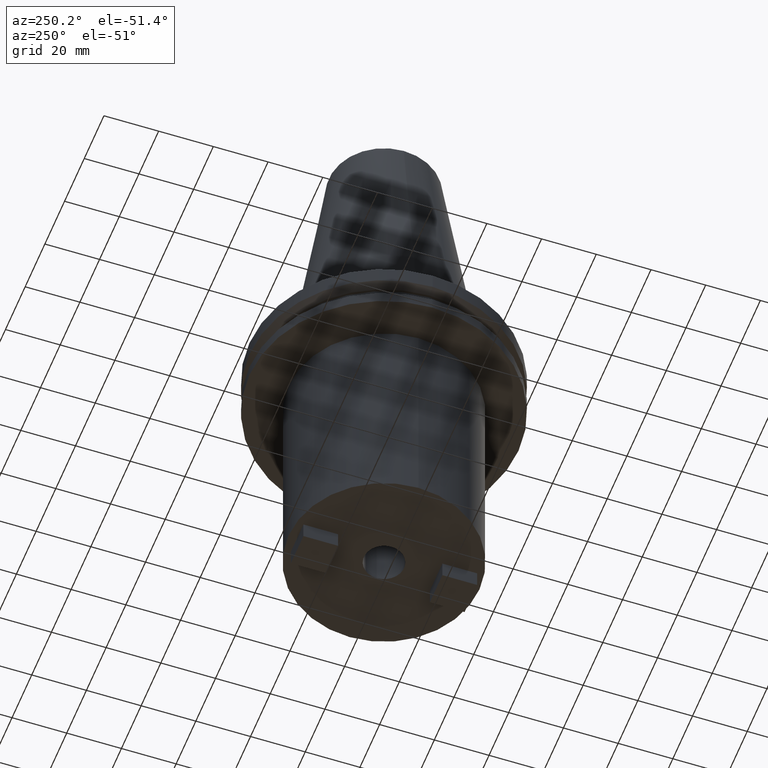
[diagram: clean part render]
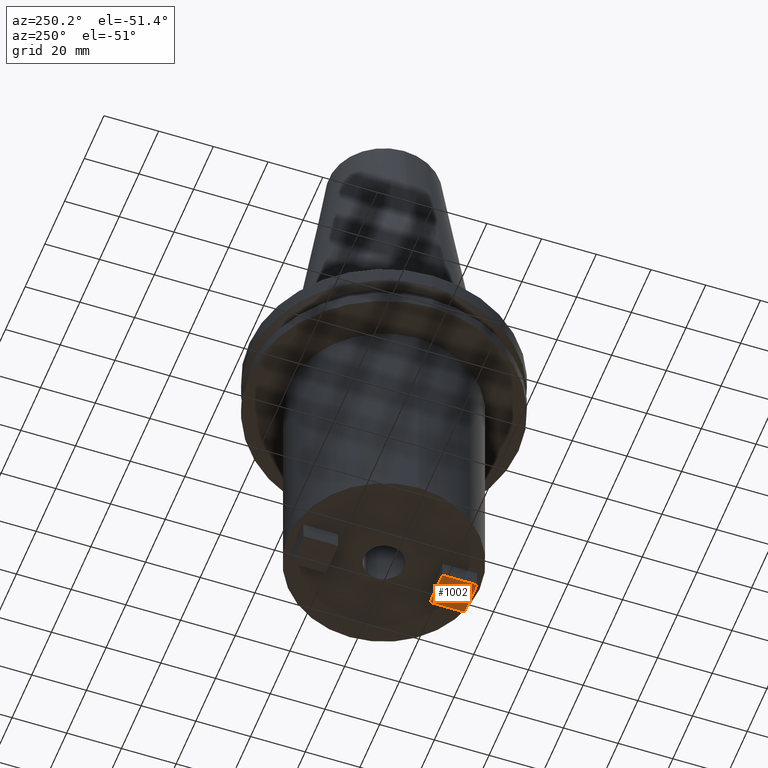
[diagram: same view with one face highlighted and labeled with its STEP entity id]
A machine part, auxiliary view. The second image highlights one B-rep face of the part: STEP entity #1002.
In plain terms, the highlighted planar face has unit normal (0, -0, 1).
Its self-contained STEP definition (entity closure, byte-faithful):
#35 = VERTEX_POINT ( 'NONE', #440 ) ;
#58 = CARTESIAN_POINT ( 'NONE',  ( 6.349999999999984546, -19.05000000000000782, -108.0000000000000000 ) ) ;
#82 = VECTOR ( 'NONE', #253, 1000.000000000000000 ) ;
#115 = DIRECTION ( 'NONE',  ( -1.000000000000000000, 0.000000000000000000, 0.000000000000000000 ) ) ;
#195 = LINE ( 'NONE', #284, #564 ) ;
#253 = DIRECTION ( 'NONE',  ( 1.000000000000000000, -1.092739197465706471E-15, -0.000000000000000000 ) ) ;
#256 = LINE ( 'NONE', #869, #82 ) ;
#257 = DIRECTION ( 'NONE',  ( -0.000000000000000000, -1.000000000000000000, -0.000000000000000000 ) ) ;
#284 = CARTESIAN_POINT ( 'NONE',  ( 6.349999999999984546, -31.75000000000000711, -108.0000000000000000 ) ) ;
#287 = PLANE ( 'NONE',  #804 ) ;
#325 = EDGE_LOOP ( 'NONE', ( #336, #612, #529, #560 ) ) ;
#336 = ORIENTED_EDGE ( 'NONE', *, *, #568, .T. ) ;
#404 = EDGE_CURVE ( 'NONE', #624, #1001, #865, .T. ) ;
#433 = LINE ( 'NONE', #450, #659 ) ;
#440 = CARTESIAN_POINT ( 'NONE',  ( -6.350000000000003197, -19.04999999999999361, -108.0000000000000000 ) ) ;
#450 = CARTESIAN_POINT ( 'NONE',  ( -6.350000000000004974, -31.75000000000000711, -108.0000000000000000 ) ) ;
#459 = DIRECTION ( 'NONE',  ( 0.000000000000000000, -0.000000000000000000, 1.000000000000000000 ) ) ;
#495 = CARTESIAN_POINT ( 'NONE',  ( 6.349999999999984546, -31.75000000000000711, -108.0000000000000000 ) ) ;
#529 = ORIENTED_EDGE ( 'NONE', *, *, #404, .T. ) ;
#540 = EDGE_CURVE ( 'NONE', #1001, #847, #195, .T. ) ;
#560 = ORIENTED_EDGE ( 'NONE', *, *, #540, .T. ) ;
#564 = VECTOR ( 'NONE', #115, 1000.000000000000000 ) ;
#568 = EDGE_CURVE ( 'NONE', #847, #35, #433, .T. ) ;
#612 = ORIENTED_EDGE ( 'NONE', *, *, #838, .T. ) ;
#624 = VERTEX_POINT ( 'NONE', #58 ) ;
#659 = VECTOR ( 'NONE', #744, 1000.000000000000000 ) ;
#667 = CARTESIAN_POINT ( 'NONE',  ( 6.349999999999984546, -31.75000000000000711, -108.0000000000000000 ) ) ;
#700 = DIRECTION ( 'NONE',  ( 1.000000000000000000, 0.000000000000000000, -0.000000000000000000 ) ) ;
#744 = DIRECTION ( 'NONE',  ( 1.365923996832130130E-16, 1.000000000000000000, 0.000000000000000000 ) ) ;
#761 = CARTESIAN_POINT ( 'NONE',  ( 0.000000000000000000, 0.000000000000000000, -108.0000000000000000 ) ) ;
#766 = FACE_OUTER_BOUND ( 'NONE', #325, .T. ) ;
#793 = CARTESIAN_POINT ( 'NONE',  ( -6.350000000000004974, -31.75000000000000711, -108.0000000000000000 ) ) ;
#804 = AXIS2_PLACEMENT_3D ( 'NONE', #761, #459, #700 ) ;
#838 = EDGE_CURVE ( 'NONE', #35, #624, #256, .T. ) ;
#847 = VERTEX_POINT ( 'NONE', #793 ) ;
#865 = LINE ( 'NONE', #495, #901 ) ;
#869 = CARTESIAN_POINT ( 'NONE',  ( 6.349999999999984546, -19.05000000000000782, -108.0000000000000000 ) ) ;
#901 = VECTOR ( 'NONE', #257, 1000.000000000000000 ) ;
#1001 = VERTEX_POINT ( 'NONE', #667 ) ;
#1002 = ADVANCED_FACE ( 'NONE', ( #766 ), #287, .F. ) ;